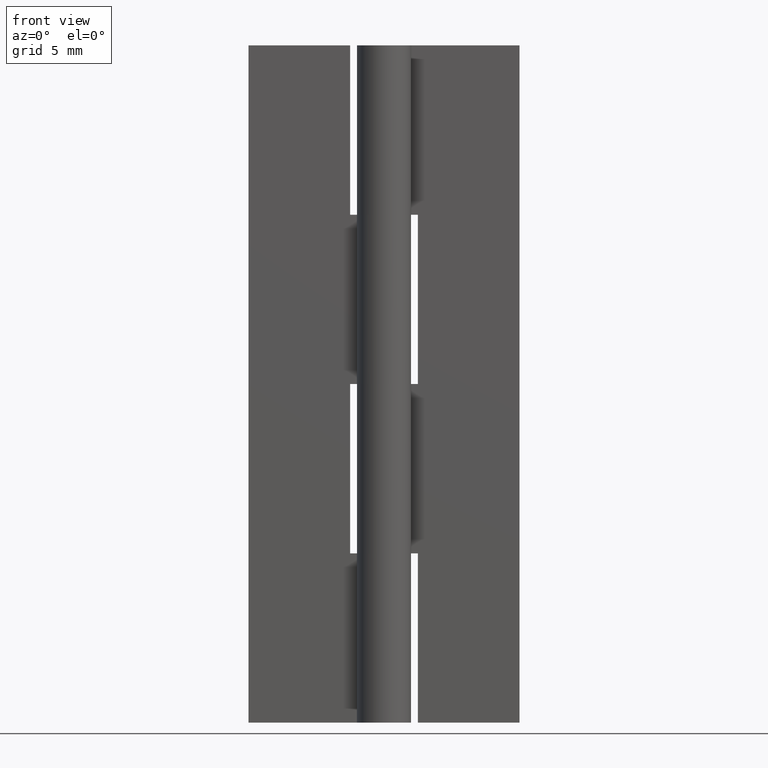
[diagram: clean part render]
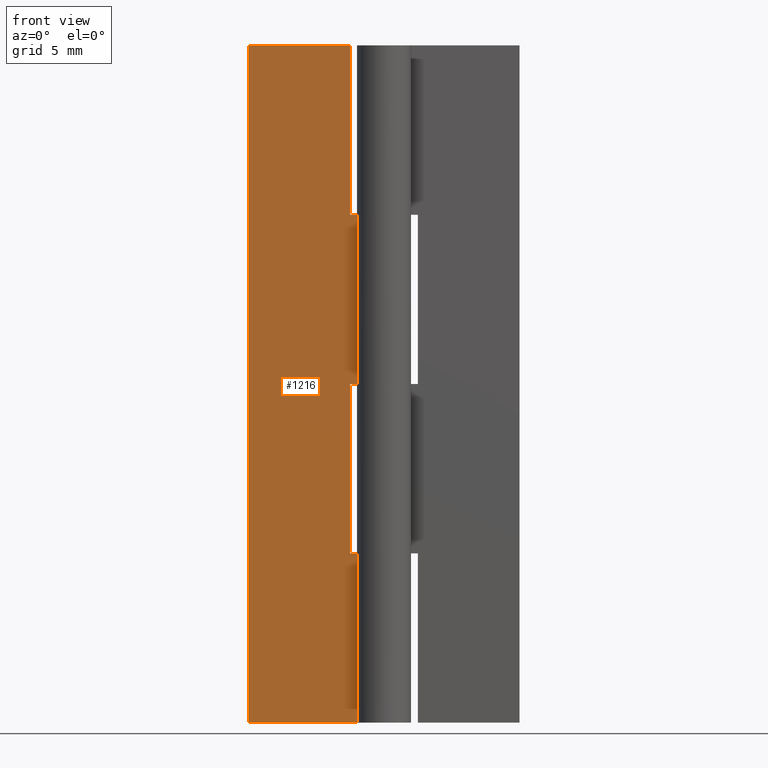
[diagram: same view with one face highlighted and labeled with its STEP entity id]
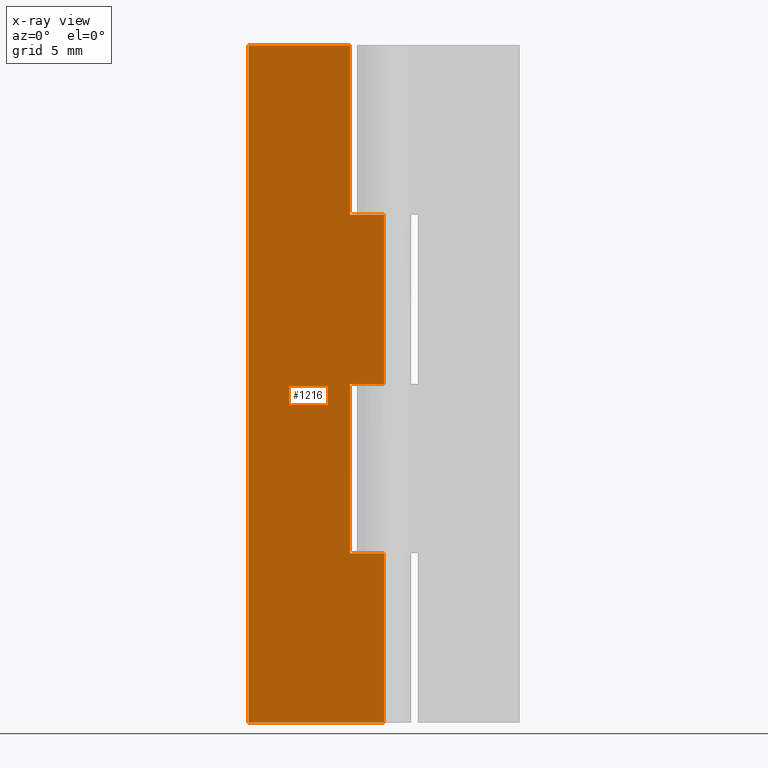
[diagram: x-ray of the same camera — body ghosted, the highlighted face saturated]
A machine part, front view. The second image highlights one B-rep face of the part: STEP entity #1216.
The next image is the same camera in x-ray: the body ghosted, the highlighted face saturated — about 0% of this face is hidden behind the body in this view.
In plain terms, the highlighted face is a freeform B-spline surface patch.
Its self-contained STEP definition (entity closure, byte-faithful):
#715=CARTESIAN_POINT('',(-2.500000000000000,1.0,37.500000000000000));
#716=VERTEX_POINT('',#715);
#722=CARTESIAN_POINT('',(6.123122E-017,1.0,37.500000000000000));
#723=VERTEX_POINT('',#722);
#724=CARTESIAN_POINT('',(6.123122E-017,1.0,37.500000000000000));
#725=CARTESIAN_POINT('',(-2.500000000000000,1.0,37.500000000000000));
#726=QUASI_UNIFORM_CURVE('',1,(#724,#725),.UNSPECIFIED.,.F.,.U.);
#727=EDGE_CURVE('',#723,#716,#726,.T.);
#792=CARTESIAN_POINT('',(-2.500000000000000,1.0,50.0));
#793=VERTEX_POINT('',#792);
#799=CARTESIAN_POINT('',(-2.500000000000000,1.0,37.500000000000000));
#800=CARTESIAN_POINT('',(-2.500000000000000,1.0,50.0));
#801=QUASI_UNIFORM_CURVE('',1,(#799,#800),.UNSPECIFIED.,.F.,.U.);
#802=EDGE_CURVE('',#716,#793,#801,.T.);
#842=CARTESIAN_POINT('',(6.123032E-017,1.0,25.0));
#843=VERTEX_POINT('',#842);
#863=CARTESIAN_POINT('',(-2.500000000000000,1.0,25.0));
#864=VERTEX_POINT('',#863);
#865=CARTESIAN_POINT('',(-2.500000000000000,1.0,25.0));
#866=CARTESIAN_POINT('',(6.123032E-017,1.0,25.0));
#867=QUASI_UNIFORM_CURVE('',1,(#865,#866),.UNSPECIFIED.,.F.,.U.);
#868=EDGE_CURVE('',#864,#843,#867,.T.);
#899=CARTESIAN_POINT('',(-2.500000000000000,1.0,12.500000000000000));
#900=VERTEX_POINT('',#899);
#906=CARTESIAN_POINT('',(6.123122E-017,1.0,12.500000000000000));
#907=VERTEX_POINT('',#906);
#908=CARTESIAN_POINT('',(6.123122E-017,1.0,12.500000000000000));
#909=CARTESIAN_POINT('',(-2.500000000000000,1.0,12.500000000000000));
#910=QUASI_UNIFORM_CURVE('',1,(#908,#909),.UNSPECIFIED.,.F.,.U.);
#911=EDGE_CURVE('',#907,#900,#910,.T.);
#975=CARTESIAN_POINT('',(-2.500000000000000,1.0,12.500000000000000));
#976=CARTESIAN_POINT('',(-2.500000000000000,1.0,25.0));
#977=QUASI_UNIFORM_CURVE('',1,(#975,#976),.UNSPECIFIED.,.F.,.U.);
#978=EDGE_CURVE('',#900,#864,#977,.T.);
#988=CARTESIAN_POINT('',(-10.0,1.0,0.0));
#989=VERTEX_POINT('',#988);
#1032=CARTESIAN_POINT('',(6.123032E-017,1.0,0.0));
#1033=VERTEX_POINT('',#1032);
#1053=CARTESIAN_POINT('',(6.123032E-017,1.0,0.0));
#1054=CARTESIAN_POINT('',(-10.0,1.0,0.0));
#1055=QUASI_UNIFORM_CURVE('',1,(#1053,#1054),.UNSPECIFIED.,.F.,.U.);
#1056=EDGE_CURVE('',#1033,#989,#1055,.T.);
#1067=CARTESIAN_POINT('',(-10.0,1.0,50.0));
#1068=VERTEX_POINT('',#1067);
#1069=CARTESIAN_POINT('',(-10.0,1.0,50.0));
#1070=CARTESIAN_POINT('',(-10.0,1.0,0.0));
#1071=QUASI_UNIFORM_CURVE('',1,(#1069,#1070),.UNSPECIFIED.,.F.,.U.);
#1072=EDGE_CURVE('',#1068,#989,#1071,.T.);
#1112=CARTESIAN_POINT('',(6.123122E-017,1.0,12.500000000000000));
#1113=CARTESIAN_POINT('',(6.123032E-017,1.0,0.0));
#1114=QUASI_UNIFORM_CURVE('',1,(#1112,#1113),.UNSPECIFIED.,.F.,.U.);
#1115=EDGE_CURVE('',#907,#1033,#1114,.T.);
#1187=CARTESIAN_POINT('',(-2.500000000000000,1.0,50.0));
#1188=CARTESIAN_POINT('',(-10.0,1.0,50.0));
#1189=QUASI_UNIFORM_CURVE('',1,(#1187,#1188),.UNSPECIFIED.,.F.,.U.);
#1190=EDGE_CURVE('',#793,#1068,#1189,.T.);
#1195=CARTESIAN_POINT('',(-10.499499980618060,1.0,52.497499903090286));
#1196=CARTESIAN_POINT('',(-10.499499980618060,1.0,-2.497501244194806));
#1197=CARTESIAN_POINT('',(0.499500248838961,1.0,52.497499903090301));
#1198=CARTESIAN_POINT('',(0.499500248838961,1.0,-2.497501244194806));
#1199=B_SPLINE_SURFACE_WITH_KNOTS('',1,1,((#1195,#1197),(#1196,#1198)),.UNSPECIFIED.,.F.,.F.,.U.,(2,2),(2,2),(0.0,54.995001147285109),(0.0,10.999000229457019),.UNSPECIFIED.);
#1200=ORIENTED_EDGE('',*,*,#727,.T.);
#1201=ORIENTED_EDGE('',*,*,#802,.T.);
#1202=ORIENTED_EDGE('',*,*,#1190,.T.);
#1203=ORIENTED_EDGE('',*,*,#1072,.T.);
#1204=ORIENTED_EDGE('',*,*,#1056,.F.);
#1205=ORIENTED_EDGE('',*,*,#1115,.F.);
#1206=ORIENTED_EDGE('',*,*,#911,.T.);
#1207=ORIENTED_EDGE('',*,*,#978,.T.);
#1208=ORIENTED_EDGE('',*,*,#868,.T.);
#1209=CARTESIAN_POINT('',(6.123122E-017,1.0,37.500000000000000));
#1210=CARTESIAN_POINT('',(6.123032E-017,1.0,25.0));
#1211=QUASI_UNIFORM_CURVE('',1,(#1209,#1210),.UNSPECIFIED.,.F.,.U.);
#1212=EDGE_CURVE('',#723,#843,#1211,.T.);
#1213=ORIENTED_EDGE('',*,*,#1212,.F.);
#1214=EDGE_LOOP('',(#1200,#1201,#1202,#1203,#1204,#1205,#1206,#1207,#1208,#1213));
#1215=FACE_OUTER_BOUND('',#1214,.T.);
#1216=ADVANCED_FACE('',(#1215),#1199,.T.);